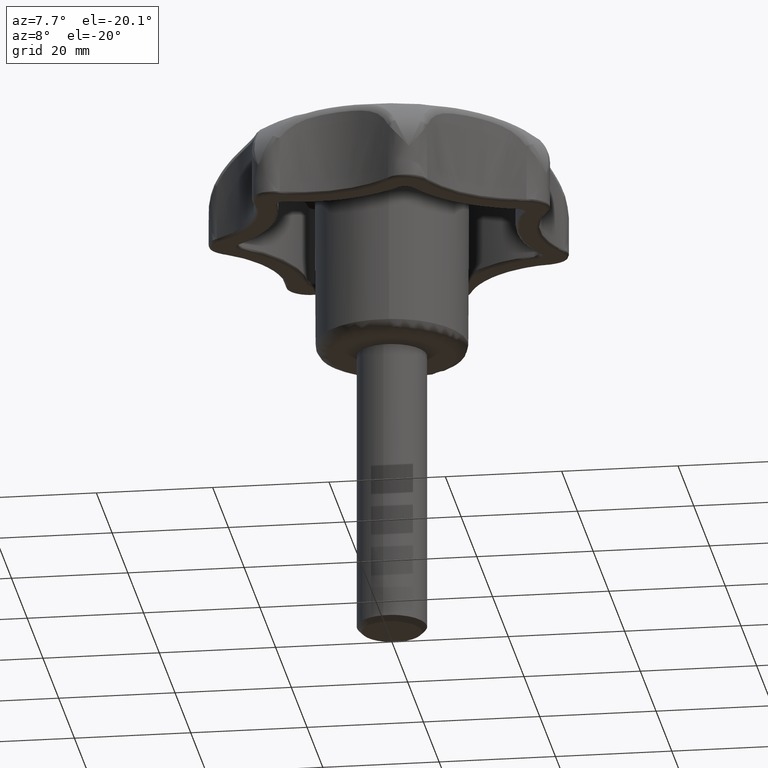
[diagram: clean part render]
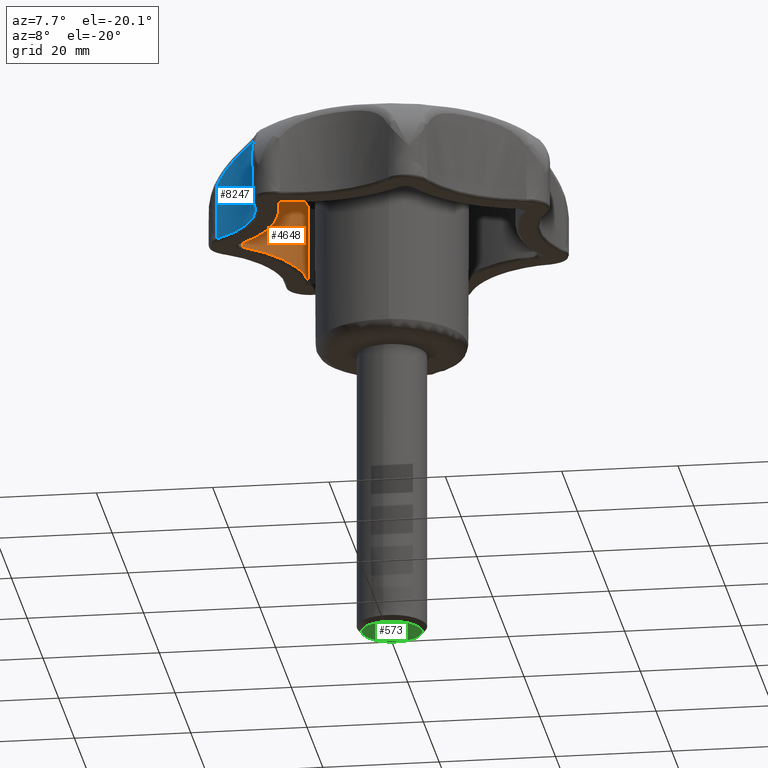
[diagram: same view with three faces highlighted in distinct colors, each labeled with its STEP entity id]
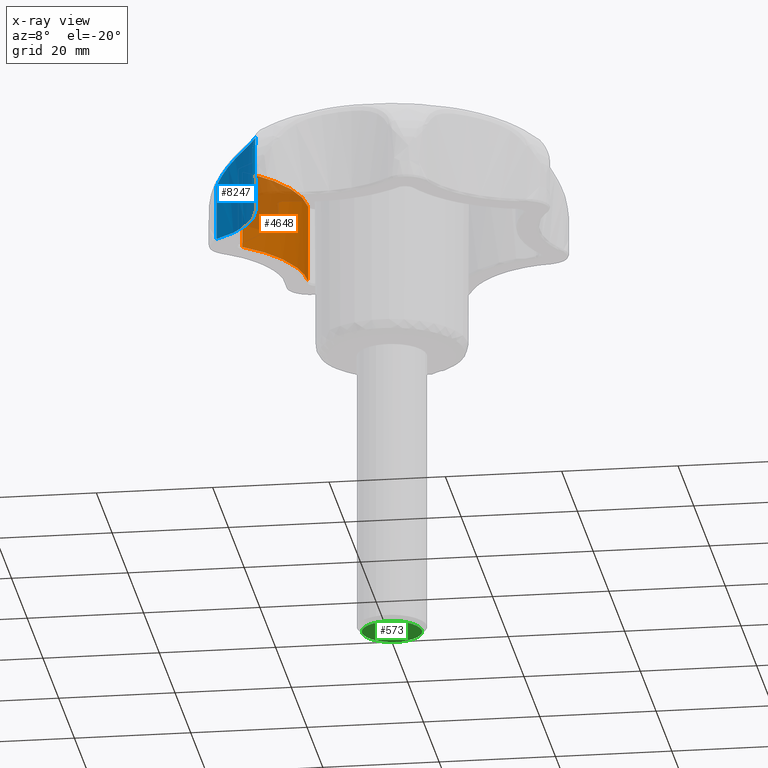
[diagram: x-ray of the same camera — body ghosted, the three highlighted faces saturated]
A machine part, auxiliary view with three faces highlighted in distinct colors.
The next image is the same camera in x-ray (body ghosted, the three faces saturated) — at least one of them is partly hidden behind the body in this view.
Their STEP definitions:

[orange] entity #4648 — the highlighted face is a freeform B-spline surface patch.
#2357=CARTESIAN_POINT('',(-25.848928935543402,1.180507493791926,21.500000000000000));
#2358=VERTEX_POINT('',#2357);
#2409=CARTESIAN_POINT('',(-17.039502153280051,19.473471969081501,21.500000000000000));
#2410=VERTEX_POINT('',#2409);
#2424=CARTESIAN_POINT('',(-25.848928935543402,1.180507493791926,21.500000000000000));
#2425=CARTESIAN_POINT('',(-16.945132656566564,8.160345755205041,21.500000000000004));
#2426=CARTESIAN_POINT('',(-17.039502153280040,19.473471969081480,21.500000000000000));
#2434=(BOUNDED_CURVE()B_SPLINE_CURVE(2,(#2424,#2425,#2426),.UNSPECIFIED.,.F.,.U.)CURVE()GEOMETRIC_REPRESENTATION_ITEM()QUASI_UNIFORM_CURVE()RATIONAL_B_SPLINE_CURVE((1.0,0.897318377557612,1.0))REPRESENTATION_ITEM(''));
#2435=EDGE_CURVE('',#2358,#2410,#2434,.T.);
#4583=CARTESIAN_POINT('',(-17.039502153280051,19.473471969081501,34.999712895857549));
#4584=VERTEX_POINT('',#4583);
#4585=CARTESIAN_POINT('',(-17.039502153280051,19.473471969081501,34.999712895857549));
#4586=CARTESIAN_POINT('',(-17.039502153280051,19.473471969081501,21.500000000000000));
#4587=QUASI_UNIFORM_CURVE('',1,(#4585,#4586),.UNSPECIFIED.,.F.,.U.);
#4588=EDGE_CURVE('',#4584,#2410,#4587,.T.);
#4610=CARTESIAN_POINT('',(-26.526810632997670,0.669024339105654,35.337205718253998));
#4611=CARTESIAN_POINT('',(-26.526810632997670,0.669024339105654,21.154069857043648));
#4612=CARTESIAN_POINT('',(-16.415555923460559,8.009331033984900,35.337205718253998));
#4613=CARTESIAN_POINT('',(-16.415555923460559,8.009331033984900,21.154069857043648));
#4614=CARTESIAN_POINT('',(-17.070302259249676,20.486866103532741,35.337205718253998));
#4615=CARTESIAN_POINT('',(-17.070302259249676,20.486866103532741,21.154069857043645));
#4623=(BOUNDED_SURFACE()B_SPLINE_SURFACE(1,2,((#4610,#4612,#4614),(#4611,#4613,#4615)),.UNSPECIFIED.,.F.,.F.,.U.)B_SPLINE_SURFACE_WITH_KNOTS((2,2),(3,3),(0.0,14.183135861210349),(0.0,23.375953941092899),.UNSPECIFIED.)GEOMETRIC_REPRESENTATION_ITEM()RATIONAL_B_SPLINE_SURFACE(((1.0,0.874871321300454,0.991283315700373),(1.0,0.874871321300454,0.991283315700373)))REPRESENTATION_ITEM('')SURFACE());
#4624=CARTESIAN_POINT('',(-25.848928935543402,1.180507493791926,34.999712895857549));
#4625=VERTEX_POINT('',#4624);
#4626=CARTESIAN_POINT('',(-25.848928935543402,1.180507493791926,34.999712895857549));
#4627=CARTESIAN_POINT('',(-25.848928935543402,1.180507493791926,21.500000000000000));
#4628=QUASI_UNIFORM_CURVE('',1,(#4626,#4627),.UNSPECIFIED.,.F.,.U.);
#4629=EDGE_CURVE('',#4625,#2358,#4628,.T.);
#4630=ORIENTED_EDGE('',*,*,#4629,.T.);
#4631=ORIENTED_EDGE('',*,*,#2435,.T.);
#4632=ORIENTED_EDGE('',*,*,#4588,.F.);
#4633=CARTESIAN_POINT('',(-17.039502153280040,19.473471969081491,34.999712895857549));
#4634=CARTESIAN_POINT('',(-16.945132656566564,8.160345755205047,34.999712895857549));
#4635=CARTESIAN_POINT('',(-25.848928935543402,1.180507493791926,34.999712895857549));
#4643=(BOUNDED_CURVE()B_SPLINE_CURVE(2,(#4633,#4634,#4635),.UNSPECIFIED.,.F.,.U.)CURVE()GEOMETRIC_REPRESENTATION_ITEM()QUASI_UNIFORM_CURVE()RATIONAL_B_SPLINE_CURVE((1.0,0.897318377557612,1.0))REPRESENTATION_ITEM(''));
#4644=EDGE_CURVE('',#4584,#4625,#4643,.T.);
#4645=ORIENTED_EDGE('',*,*,#4644,.T.);
#4646=EDGE_LOOP('',(#4630,#4631,#4632,#4645));
#4647=FACE_OUTER_BOUND('',#4646,.T.);
#4648=ADVANCED_FACE('',(#4647),#4623,.T.);

[blue] entity #8247 — the highlighted face is a freeform B-spline surface patch.
#3251=CARTESIAN_POINT('',(-29.680643736983850,-3.353325646630985,21.500000000000000));
#3252=VERTEX_POINT('',#3251);
#3285=CARTESIAN_POINT('',(-21.127314696848501,-21.114497622342149,21.500000000000000));
#3286=VERTEX_POINT('',#3285);
#3300=CARTESIAN_POINT('',(-29.680643736983850,-3.353325646630985,21.500000000000000));
#3301=CARTESIAN_POINT('',(-20.015096792720037,-9.638762812337625,21.500000000000000));
#3302=CARTESIAN_POINT('',(-21.127314696848501,-21.114497622342149,21.500000000000000));
#3310=(BOUNDED_CURVE()B_SPLINE_CURVE(2,(#3300,#3301,#3302),.UNSPECIFIED.,.F.,.U.)CURVE()GEOMETRIC_REPRESENTATION_ITEM()QUASI_UNIFORM_CURVE()RATIONAL_B_SPLINE_CURVE((1.0,0.854911404075926,1.0))REPRESENTATION_ITEM(''));
#3311=EDGE_CURVE('',#3252,#3286,#3310,.T.);
#7120=CARTESIAN_POINT('',(-21.127314696848501,-21.114497622342149,31.049570793858951));
#7121=VERTEX_POINT('',#7120);
#7386=CARTESIAN_POINT('',(-29.680643736983850,-3.353325646630985,31.049571825332201));
#7387=VERTEX_POINT('',#7386);
#7401=CARTESIAN_POINT('',(-21.127314696848501,-21.114497622342149,31.049570793858951));
#7402=CARTESIAN_POINT('',(-21.102494228034480,-20.858403155694230,31.477336342915379));
#7403=CARTESIAN_POINT('',(-21.079393132247951,-20.566693913957451,31.875113264052789));
#7404=CARTESIAN_POINT('',(-21.054658868787111,-20.077114289348231,32.428309608409222));
#7405=CARTESIAN_POINT('',(-21.048078164715360,-19.905214610371459,32.605432667509213));
#7406=CARTESIAN_POINT('',(-21.041758826892430,-19.634206486813071,32.860167186424199));
#7407=CARTESIAN_POINT('',(-21.040245439668560,-19.541668698706420,32.943258425938801));
#7408=CARTESIAN_POINT('',(-21.038596879991012,-19.352198270627699,33.105744081884119));
#7409=CARTESIAN_POINT('',(-21.038468597393351,-19.256002255324450,33.184507824305520));
#7410=CARTESIAN_POINT('',(-21.041633377014481,-18.768012105476920,33.566386635380610));
#7411=CARTESIAN_POINT('',(-21.056356726906660,-18.355252254988820,33.833787527493222));
#7412=CARTESIAN_POINT('',(-21.102805134294400,-17.707231499325509,34.184891085490563));
#7413=CARTESIAN_POINT('',(-21.122346170071712,-17.486398283466130,34.293571700627162));
#7414=CARTESIAN_POINT('',(-21.158493387146979,-17.148418801620728,34.444834865061061));
#7415=CARTESIAN_POINT('',(-21.171709080518578,-17.034423023778501,34.493381347882902));
#7416=CARTESIAN_POINT('',(-21.200411578328271,-16.805306472242879,34.586263285360857));
#7417=CARTESIAN_POINT('',(-21.215862426366400,-16.690437596484379,34.630507579030713));
#7418=CARTESIAN_POINT('',(-21.298707694407181,-16.114745043939148,34.841480248707583));
#7419=CARTESIAN_POINT('',(-21.382886600573361,-15.649928728279921,34.977658910976892));
#7420=CARTESIAN_POINT('',(-21.589187042501671,-14.716094626002709,35.200169722845239));
#7421=CARTESIAN_POINT('',(-21.711292821483049,-14.247068526972880,35.286482517566377));
#7422=CARTESIAN_POINT('',(-21.888936488665159,-13.660141566718631,35.369979374183757));
#7423=CARTESIAN_POINT('',(-21.925756748748579,-13.542597679090530,35.385463229137493));
#7424=CARTESIAN_POINT('',(-22.001751414112832,-13.308046946149521,35.414027972815120));
#7425=CARTESIAN_POINT('',(-22.040842857636520,-13.191286871071410,35.427081934546443));
#7426=CARTESIAN_POINT('',(-22.161376760174690,-12.842542805107010,35.462813307626597));
#7427=CARTESIAN_POINT('',(-22.246077532032899,-12.612094433423261,35.482073696948142));
#7428=CARTESIAN_POINT('',(-22.513078679935312,-11.926834472982790,35.527702948893271));
#7429=CARTESIAN_POINT('',(-22.708258596051529,-11.478099730483020,35.542118958587807));
#7430=CARTESIAN_POINT('',(-23.132727335041569,-10.596735860656301,35.542100551539953));
#7431=CARTESIAN_POINT('',(-23.362015697764491,-10.164106521350480,35.527667732147087));
#7432=CARTESIAN_POINT('',(-23.731811134132180,-9.527364777096524,35.481923239742578));
#7433=CARTESIAN_POINT('',(-23.859391667712259,-9.317153355176767,35.462609155965403));
#7434=CARTESIAN_POINT('',(-24.057316946220329,-9.004925266992723,35.426756694950612));
#7435=CARTESIAN_POINT('',(-24.124489200858481,-8.901208601264839,35.413632569130492));
#7436=CARTESIAN_POINT('',(-24.260411552726300,-8.695749268120359,35.385045588101363));
#7437=CARTESIAN_POINT('',(-24.329157377173509,-8.594004391953153,35.369587299147632));
#7438=CARTESIAN_POINT('',(-24.676680062413610,-8.090196715944066,35.286154086185093));
#7439=CARTESIAN_POINT('',(-24.966862934768500,-7.702851628177691,35.199926877162042));
#7440=CARTESIAN_POINT('',(-25.567878289898580,-6.959953452396588,34.977539658834537));
#7441=CARTESIAN_POINT('',(-25.878727361589739,-6.604406854938834,34.841402044446973));
#7442=CARTESIAN_POINT('',(-26.277352896738218,-6.180523273546888,34.630306897075997));
#7443=CARTESIAN_POINT('',(-26.357578237573041,-6.096775528703751,34.586028989675867));
#7444=CARTESIAN_POINT('',(-26.518944184011879,-5.931360873688816,34.493055891360257));
#7445=CARTESIAN_POINT('',(-26.599747192038151,-5.850043384986327,34.444549551119813));
#7446=CARTESIAN_POINT('',(-26.841459864118839,-5.611065251814507,34.293257802619500));
#7447=CARTESIAN_POINT('',(-27.002029307141399,-5.458013758434259,34.184498531101752));
#7448=CARTESIAN_POINT('',(-27.480289479613720,-5.017181040192599,33.832881255661491));
#7449=CARTESIAN_POINT('',(-27.794582940914321,-4.747696993958005,33.564776434697450));
#7450=CARTESIAN_POINT('',(-28.175496419391219,-4.439994235108723,33.181129198121113));
#7451=CARTESIAN_POINT('',(-28.251179100867429,-4.379838118488514,33.101839554484833));
#7452=CARTESIAN_POINT('',(-28.399644657136260,-4.263592738945500,32.939919924142913));
#7453=CARTESIAN_POINT('',(-28.472610980473050,-4.207352337142593,32.857114665261143));
#7454=CARTESIAN_POINT('',(-28.687564581251142,-4.044035616921864,32.603182773206932));
#7455=CARTESIAN_POINT('',(-28.825608653634131,-3.942356561789469,32.426545209480203));
#7456=CARTESIAN_POINT('',(-29.222751161375271,-3.657237044598147,31.874580435947280));
#7457=CARTESIAN_POINT('',(-29.464950465813949,-3.493590314925007,31.477327701939270));
#7458=CARTESIAN_POINT('',(-29.680643736983850,-3.353325646630985,31.049571825332201));
#7459=B_SPLINE_CURVE_WITH_KNOTS('',3,(#7401,#7402,#7403,#7404,#7405,#7406,#7407,#7408,#7409,#7410,#7411,#7412,#7413,#7414,#7415,#7416,#7417,#7418,#7419,#7420,#7421,#7422,#7423,#7424,#7425,#7426,#7427,#7428,#7429,#7430,#7431,#7432,#7433,#7434,#7435,#7436,#7437,#7438,#7439,#7440,#7441,#7442,#7443,#7444,#7445,#7446,#7447,#7448,#7449,#7450,#7451,#7452,#7453,#7454,#7455,#7456,#7457,#7458),.UNSPECIFIED.,.F.,.U.,(4,2,2,2,2,2,2,2,2,2,2,2,2,2,2,2,2,2,2,2,2,2,2,2,2,2,2,2,4),(0.0,0.062500000000002,0.093750000000003,0.109375000000004,0.125000000000004,0.187500000000004,0.218750000000004,0.234375000000004,0.250000000000004,0.312500000000005,0.375000000000006,0.390625000000006,0.406250000000006,0.437500000000006,0.500000000000005,0.562500000000005,0.593750000000005,0.609375000000005,0.625000000000005,0.687500000000004,0.750000000000004,0.765625000000004,0.781250000000004,0.812500000000003,0.875000000000003,0.890625000000003,0.906250000000003,0.937500000000002,1.0),.UNSPECIFIED.);
#7460=EDGE_CURVE('',#7121,#7387,#7459,.T.);
#8219=CARTESIAN_POINT('',(-21.202796899415990,-21.773345103644971,35.893162503453730));
#8220=CARTESIAN_POINT('',(-21.202796899415990,-21.773345103644971,21.140170937413650));
#8221=CARTESIAN_POINT('',(-19.538945329709492,-9.195638214660880,35.893162503453730));
#8222=CARTESIAN_POINT('',(-19.538945329709492,-9.195638214660880,21.140170937413650));
#8223=CARTESIAN_POINT('',(-30.518751036512363,-2.838675160491708,35.893162503453738));
#8224=CARTESIAN_POINT('',(-30.518751036512363,-2.838675160491708,21.140170937413654));
#8232=(BOUNDED_SURFACE()B_SPLINE_SURFACE(1,2,((#8219,#8221,#8223),(#8220,#8222,#8224)),.UNSPECIFIED.,.F.,.F.,.U.)B_SPLINE_SURFACE_WITH_KNOTS((2,2),(3,3),(0.0,14.752991566040089),(0.0,23.041993156107161),.UNSPECIFIED.)GEOMETRIC_REPRESENTATION_ITEM()RATIONAL_B_SPLINE_SURFACE(((1.0,0.828265452060240,0.991916311703290),(1.0,0.828265452060240,0.991916311703290)))REPRESENTATION_ITEM('')SURFACE());
#8233=CARTESIAN_POINT('',(-29.680643736983850,-3.353325646630985,31.049571825332201));
#8234=CARTESIAN_POINT('',(-29.680643736983850,-3.353325646630985,21.500000000000000));
#8235=QUASI_UNIFORM_CURVE('',1,(#8233,#8234),.UNSPECIFIED.,.F.,.U.);
#8236=EDGE_CURVE('',#7387,#3252,#8235,.T.);
#8237=ORIENTED_EDGE('',*,*,#8236,.T.);
#8238=ORIENTED_EDGE('',*,*,#3311,.T.);
#8239=CARTESIAN_POINT('',(-21.127314696848501,-21.114497622342149,31.049570793858951));
#8240=CARTESIAN_POINT('',(-21.127314696848501,-21.114497622342149,21.500000000000000));
#8241=QUASI_UNIFORM_CURVE('',1,(#8239,#8240),.UNSPECIFIED.,.F.,.U.);
#8242=EDGE_CURVE('',#7121,#3286,#8241,.T.);
#8243=ORIENTED_EDGE('',*,*,#8242,.F.);
#8244=ORIENTED_EDGE('',*,*,#7460,.T.);
#8245=EDGE_LOOP('',(#8237,#8238,#8243,#8244));
#8246=FACE_OUTER_BOUND('',#8245,.T.);
#8247=ADVANCED_FACE('',(#8246),#8232,.F.);

[green] entity #573 — the highlighted face is a freeform B-spline surface patch.
#272=CARTESIAN_POINT('',(-0.404064343371837,5.134124268744751,-49.999999999951619));
#273=VERTEX_POINT('',#272);
#279=CARTESIAN_POINT('',(-5.150000000000000,0.0,-50.0));
#280=VERTEX_POINT('',#279);
#281=CARTESIAN_POINT('',(-5.150000000000000,0.0,-50.0));
#282=CARTESIAN_POINT('',(-5.150000000000001,4.760611031352156,-49.999999999999986));
#283=CARTESIAN_POINT('',(-0.404064343371837,5.134124268744751,-49.999999999951619));
#291=(BOUNDED_CURVE()B_SPLINE_CURVE(2,(#281,#282,#283),.UNSPECIFIED.,.F.,.U.)B_SPLINE_CURVE_WITH_KNOTS((3,3),(0.0,0.236331300608083),.UNSPECIFIED.)CURVE()GEOMETRIC_REPRESENTATION_ITEM()RATIONAL_B_SPLINE_CURVE((1.0,0.723120658634116,0.969723356120302))REPRESENTATION_ITEM(''));
#292=EDGE_CURVE('',#280,#273,#291,.T.);
#294=CARTESIAN_POINT('',(0.404064343371837,-5.134124268744750,-49.999999999951619));
#295=VERTEX_POINT('',#294);
#296=CARTESIAN_POINT('',(0.404064343371837,-5.134124268744750,-49.999999999951619));
#297=CARTESIAN_POINT('',(0.202344051460852,-5.150000000000000,-50.0));
#298=CARTESIAN_POINT('',(0.0,-5.150000000000000,-50.0));
#299=CARTESIAN_POINT('',(-5.150000000000001,-5.150000000000001,-49.999999999999993));
#300=CARTESIAN_POINT('',(-5.150000000000000,0.0,-50.0));
#308=(BOUNDED_CURVE()B_SPLINE_CURVE(2,(#296,#297,#298,#299,#300),.UNSPECIFIED.,.F.,.U.)B_SPLINE_CURVE_WITH_KNOTS((3,2,3),(0.736331300608083,0.750000000000000,1.0),.UNSPECIFIED.)CURVE()GEOMETRIC_REPRESENTATION_ITEM()RATIONAL_B_SPLINE_CURVE((0.969723356120302,0.983986122552432,1.0,0.707106781186547,1.0))REPRESENTATION_ITEM(''));
#309=EDGE_CURVE('',#295,#280,#308,.T.);
#342=CARTESIAN_POINT('',(5.150000000000000,0.0,-50.0));
#343=VERTEX_POINT('',#342);
#344=CARTESIAN_POINT('',(5.150000000000000,0.0,-50.0));
#345=CARTESIAN_POINT('',(5.150000000000001,-4.760611031352171,-50.0));
#346=CARTESIAN_POINT('',(0.404064343371837,-5.134124268744750,-49.999999999951619));
#354=(BOUNDED_CURVE()B_SPLINE_CURVE(2,(#344,#345,#346),.UNSPECIFIED.,.F.,.U.)B_SPLINE_CURVE_WITH_KNOTS((3,3),(0.500000000000000,0.736331300608084),.UNSPECIFIED.)CURVE()GEOMETRIC_REPRESENTATION_ITEM()RATIONAL_B_SPLINE_CURVE((1.0,0.723120658634115,0.969723356120303))REPRESENTATION_ITEM(''));
#355=EDGE_CURVE('',#343,#295,#354,.T.);
#357=CARTESIAN_POINT('',(-0.404064343371837,5.134124268744751,-49.999999999951619));
#358=CARTESIAN_POINT('',(-0.202344051460852,5.150000000000000,-50.0));
#359=CARTESIAN_POINT('',(0.0,5.150000000000000,-50.0));
#360=CARTESIAN_POINT('',(5.150000000000001,5.150000000000001,-49.999999999999993));
#361=CARTESIAN_POINT('',(5.150000000000000,0.0,-50.0));
#369=(BOUNDED_CURVE()B_SPLINE_CURVE(2,(#357,#358,#359,#360,#361),.UNSPECIFIED.,.F.,.U.)B_SPLINE_CURVE_WITH_KNOTS((3,2,3),(0.236331300608083,0.250000000000000,0.500000000000000),.UNSPECIFIED.)CURVE()GEOMETRIC_REPRESENTATION_ITEM()RATIONAL_B_SPLINE_CURVE((0.969723356120302,0.983986122552432,1.0,0.707106781186547,1.0))REPRESENTATION_ITEM(''));
#370=EDGE_CURVE('',#273,#343,#369,.T.);
#562=CARTESIAN_POINT('',(5.664485076725633,-5.662913266610301,-50.0));
#563=CARTESIAN_POINT('',(-5.664485260903986,-5.662913266610301,-50.0));
#564=CARTESIAN_POINT('',(5.664485076725633,5.662913266610300,-50.0));
#565=CARTESIAN_POINT('',(-5.664485260903986,5.662913266610300,-50.0));
#566=B_SPLINE_SURFACE_WITH_KNOTS('',1,1,((#562,#564),(#563,#565)),.UNSPECIFIED.,.F.,.F.,.U.,(2,2),(2,2),(0.0,11.328970337629620),(0.0,11.325826533220599),.UNSPECIFIED.);
#567=ORIENTED_EDGE('',*,*,#292,.T.);
#568=ORIENTED_EDGE('',*,*,#370,.T.);
#569=ORIENTED_EDGE('',*,*,#355,.T.);
#570=ORIENTED_EDGE('',*,*,#309,.T.);
#571=EDGE_LOOP('',(#567,#568,#569,#570));
#572=FACE_OUTER_BOUND('',#571,.T.);
#573=ADVANCED_FACE('',(#572),#566,.T.);